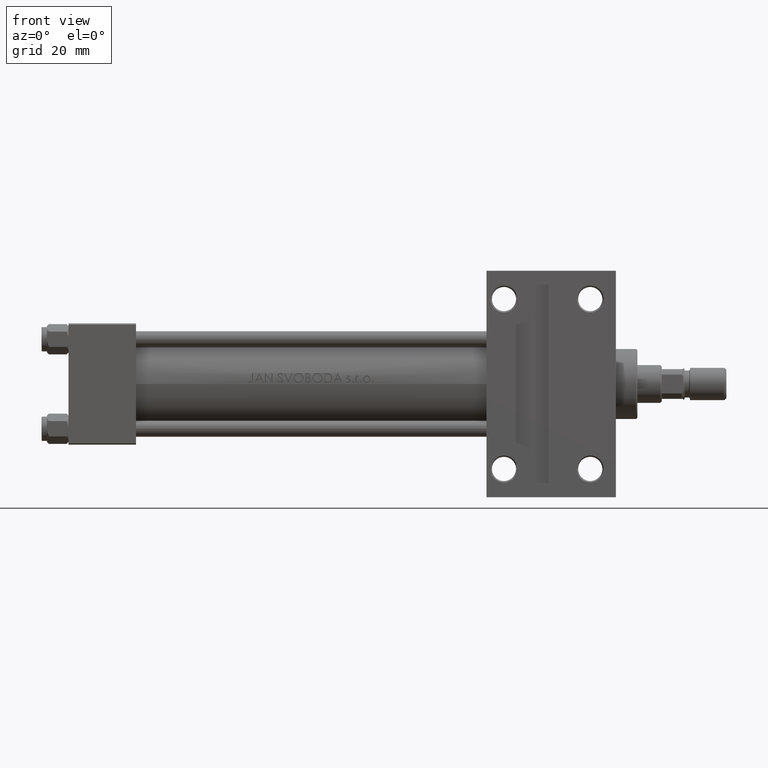
[diagram: clean part render]
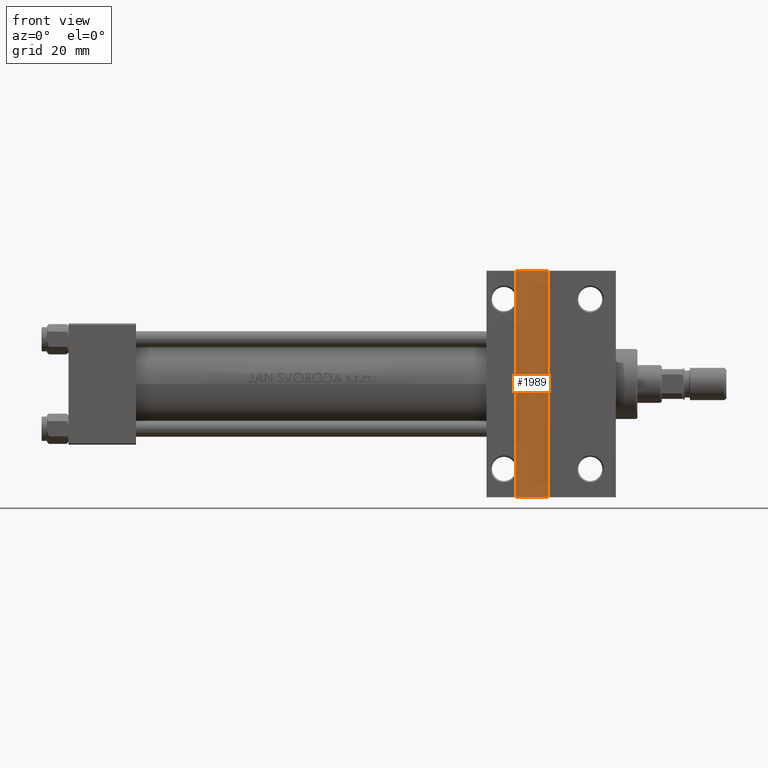
[diagram: same view with one face highlighted and labeled with its STEP entity id]
A machine part, front view. The second image highlights one B-rep face of the part: STEP entity #1989.
In plain terms, the highlighted planar face has unit normal (0, -1, 0).
Its self-contained STEP definition (entity closure, byte-faithful):
#187 = EDGE_CURVE ( 'NONE', #17258, #40983, #13901, .T. ) ;
#686 = VERTEX_POINT ( 'NONE', #46204 ) ;
#1989 = ADVANCED_FACE ( 'NONE', ( #21481 ), #6153, .T. ) ;
#2620 = CARTESIAN_POINT ( 'NONE',  ( 178.0000000000000000, -42.00000000000000000, -20.00000000000000000 ) ) ;
#3479 = CARTESIAN_POINT ( 'NONE',  ( 165.9999999999999716, -42.00000000000000000, -20.00000000000000000 ) ) ;
#6153 = PLANE ( 'NONE',  #13152 ) ;
#6278 = CARTESIAN_POINT ( 'NONE',  ( 178.0000000000000000, -42.00000000000000000, -20.00000000000000000 ) ) ;
#7364 = VECTOR ( 'NONE', #15878, 1000.000000000000000 ) ;
#11569 = EDGE_CURVE ( 'NONE', #686, #17258, #34376, .T. ) ;
#12084 = VECTOR ( 'NONE', #17482, 1000.000000000000000 ) ;
#12917 = VERTEX_POINT ( 'NONE', #6278 ) ;
#13152 = AXIS2_PLACEMENT_3D ( 'NONE', #35847, #32172, #36079 ) ;
#13901 = LINE ( 'NONE', #24872, #44651 ) ;
#14162 = ORIENTED_EDGE ( 'NONE', *, *, #11569, .T. ) ;
#15878 = DIRECTION ( 'NONE',  ( 0.000000000000000000, 1.000000000000000000, 0.000000000000000000 ) ) ;
#17258 = VERTEX_POINT ( 'NONE', #37513 ) ;
#17482 = DIRECTION ( 'NONE',  ( -0.000000000000000000, -1.000000000000000000, -0.000000000000000000 ) ) ;
#18600 = DIRECTION ( 'NONE',  ( -1.000000000000000000, -0.000000000000000000, -0.000000000000000000 ) ) ;
#20756 = VECTOR ( 'NONE', #18600, 1000.000000000000000 ) ;
#21481 = FACE_OUTER_BOUND ( 'NONE', #40542, .T. ) ;
#21711 = DIRECTION ( 'NONE',  ( 1.000000000000000000, 0.000000000000000000, 0.000000000000000000 ) ) ;
#22990 = CARTESIAN_POINT ( 'NONE',  ( 178.0000000000000000, 41.99999999999999289, -20.00000000000000000 ) ) ;
#23437 = CARTESIAN_POINT ( 'NONE',  ( 165.9999999999999716, -42.00000000000000000, -20.00000000000000000 ) ) ;
#24166 = EDGE_CURVE ( 'NONE', #40983, #12917, #28926, .T. ) ;
#24872 = CARTESIAN_POINT ( 'NONE',  ( 165.9999999999999716, 41.99999999999999289, -20.00000000000000000 ) ) ;
#26143 = ORIENTED_EDGE ( 'NONE', *, *, #24166, .T. ) ;
#26393 = LINE ( 'NONE', #3479, #20756 ) ;
#28926 = LINE ( 'NONE', #2620, #12084 ) ;
#30103 = EDGE_CURVE ( 'NONE', #12917, #686, #26393, .T. ) ;
#32172 = DIRECTION ( 'NONE',  ( 0.000000000000000000, 0.000000000000000000, -1.000000000000000000 ) ) ;
#33628 = ORIENTED_EDGE ( 'NONE', *, *, #30103, .T. ) ;
#34376 = LINE ( 'NONE', #23437, #7364 ) ;
#35506 = ORIENTED_EDGE ( 'NONE', *, *, #187, .T. ) ;
#35847 = CARTESIAN_POINT ( 'NONE',  ( 0.000000000000000000, 0.000000000000000000, -20.00000000000000000 ) ) ;
#36079 = DIRECTION ( 'NONE',  ( -1.000000000000000000, 0.000000000000000000, -0.000000000000000000 ) ) ;
#37513 = CARTESIAN_POINT ( 'NONE',  ( 165.9999999999999716, 41.99999999999999289, -20.00000000000000000 ) ) ;
#40542 = EDGE_LOOP ( 'NONE', ( #26143, #33628, #14162, #35506 ) ) ;
#40983 = VERTEX_POINT ( 'NONE', #22990 ) ;
#44651 = VECTOR ( 'NONE', #21711, 1000.000000000000000 ) ;
#46204 = CARTESIAN_POINT ( 'NONE',  ( 165.9999999999999716, -42.00000000000000000, -20.00000000000000000 ) ) ;